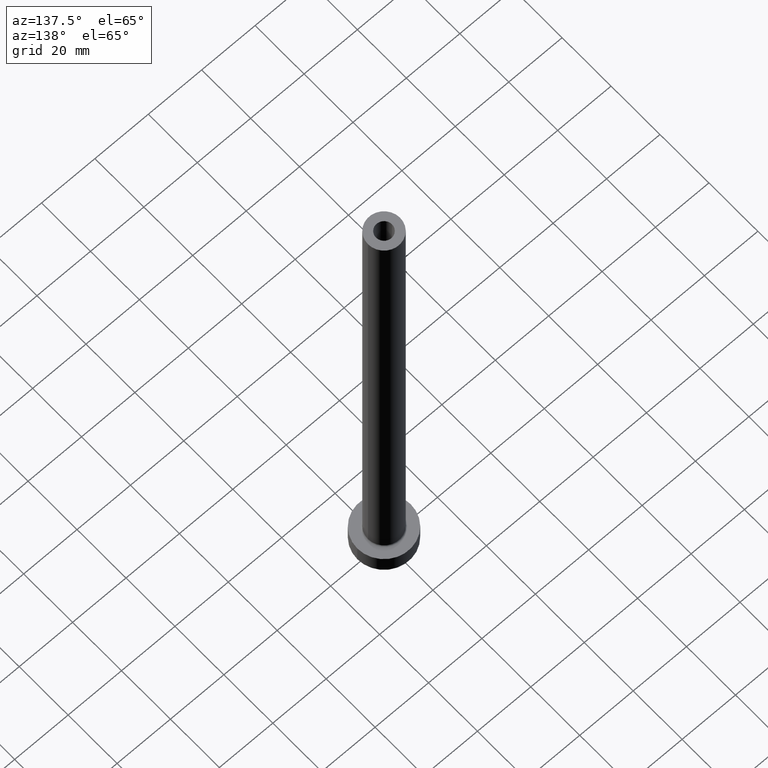
[diagram: clean part render]
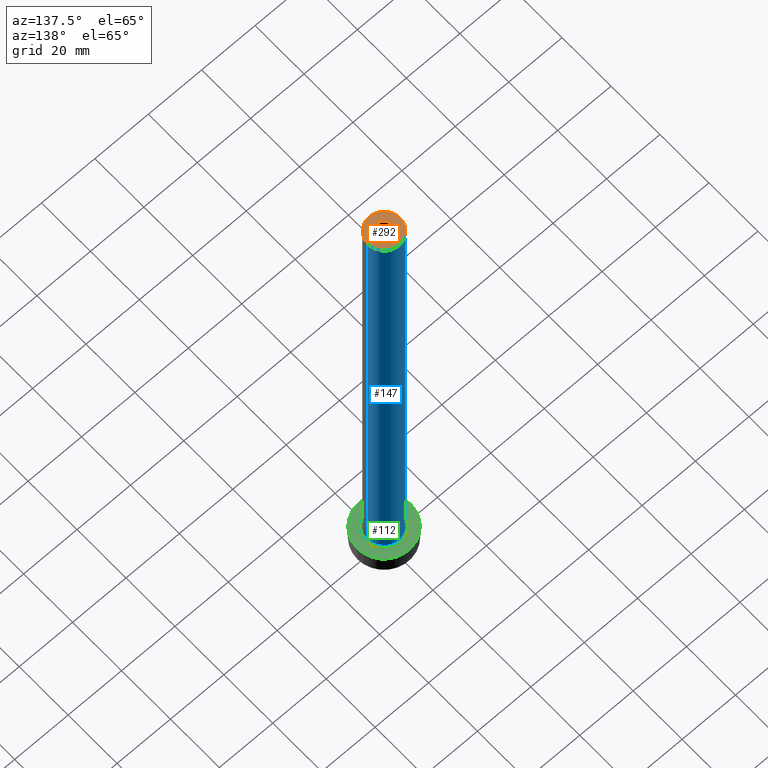
[diagram: same view with three faces highlighted in distinct colors, each labeled with its STEP entity id]
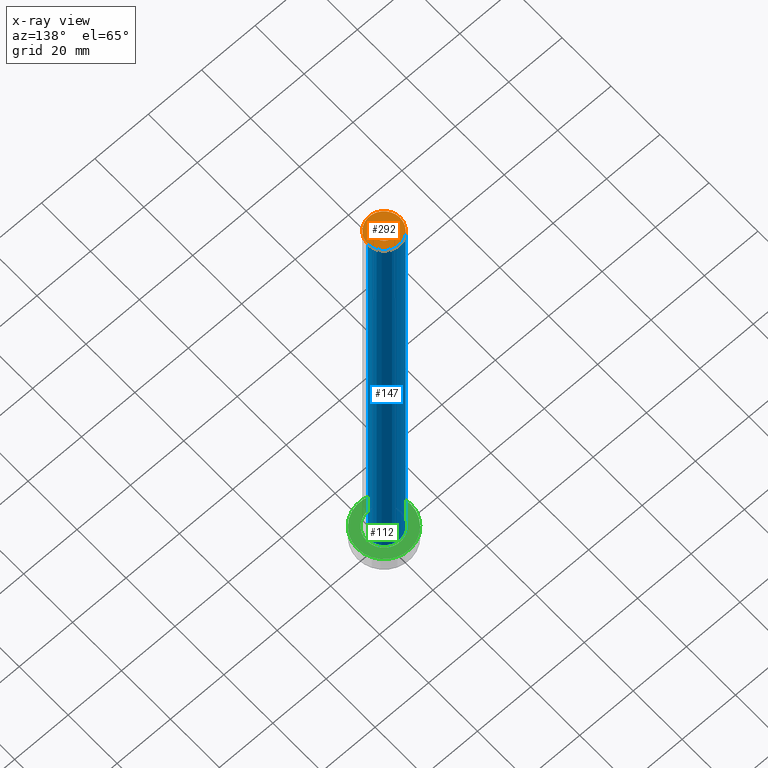
[diagram: x-ray of the same camera — body ghosted, the three highlighted faces saturated]
A machine part, auxiliary view with three faces highlighted in distinct colors.
The next image is the same camera in x-ray (body ghosted, the three faces saturated) — at least one of them is partly hidden behind the body in this view.
Their STEP definitions:

[orange] entity #292 — the highlighted planar face has unit normal (0, 0, 1).
#4 = CARTESIAN_POINT ( 'NONE',  ( 3.000000000000000444, 3.673940397442059868E-16, 200.0000000000000000 ) ) ;
#6 = AXIS2_PLACEMENT_3D ( 'NONE', #402, #233, #167 ) ;
#46 = ORIENTED_EDGE ( 'NONE', *, *, #244, .F. ) ;
#54 = PLANE ( 'NONE',  #199 ) ;
#58 = ORIENTED_EDGE ( 'NONE', *, *, #131, .T. ) ;
#80 = CARTESIAN_POINT ( 'NONE',  ( -6.000000000000000888, 0.000000000000000000, 200.0000000000000000 ) ) ;
#83 = VERTEX_POINT ( 'NONE', #449 ) ;
#85 = ORIENTED_EDGE ( 'NONE', *, *, #170, .T. ) ;
#105 = CARTESIAN_POINT ( 'NONE',  ( 6.000000000000000888, 7.347880794884120722E-16, 200.0000000000000000 ) ) ;
#127 = VERTEX_POINT ( 'NONE', #4 ) ;
#131 = EDGE_CURVE ( 'NONE', #445, #187, #272, .T. ) ;
#167 = DIRECTION ( 'NONE',  ( 1.000000000000000000, 0.000000000000000000, 0.000000000000000000 ) ) ;
#169 = AXIS2_PLACEMENT_3D ( 'NONE', #300, #398, #296 ) ;
#170 = EDGE_CURVE ( 'NONE', #187, #445, #411, .T. ) ;
#187 = VERTEX_POINT ( 'NONE', #105 ) ;
#199 = AXIS2_PLACEMENT_3D ( 'NONE', #448, #340, #447 ) ;
#209 = AXIS2_PLACEMENT_3D ( 'NONE', #379, #422, #459 ) ;
#233 = DIRECTION ( 'NONE',  ( 0.000000000000000000, 0.000000000000000000, 1.000000000000000000 ) ) ;
#244 = EDGE_CURVE ( 'NONE', #83, #127, #378, .T. ) ;
#264 = CIRCLE ( 'NONE', #6, 3.000000000000000444 ) ;
#272 = CIRCLE ( 'NONE', #331, 6.000000000000000888 ) ;
#278 = EDGE_LOOP ( 'NONE', ( #58, #85 ) ) ;
#292 = ADVANCED_FACE ( 'NONE', ( #451, #337 ), #54, .T. ) ;
#296 = DIRECTION ( 'NONE',  ( 1.000000000000000000, 0.000000000000000000, 0.000000000000000000 ) ) ;
#300 = CARTESIAN_POINT ( 'NONE',  ( 0.000000000000000000, 0.000000000000000000, 200.0000000000000000 ) ) ;
#308 = EDGE_LOOP ( 'NONE', ( #46, #454 ) ) ;
#331 = AXIS2_PLACEMENT_3D ( 'NONE', #391, #364, #333 ) ;
#333 = DIRECTION ( 'NONE',  ( 1.000000000000000000, 0.000000000000000000, 0.000000000000000000 ) ) ;
#337 = FACE_OUTER_BOUND ( 'NONE', #278, .T. ) ;
#340 = DIRECTION ( 'NONE',  ( 0.000000000000000000, 0.000000000000000000, 1.000000000000000000 ) ) ;
#345 = EDGE_CURVE ( 'NONE', #127, #83, #264, .T. ) ;
#364 = DIRECTION ( 'NONE',  ( 0.000000000000000000, 0.000000000000000000, 1.000000000000000000 ) ) ;
#378 = CIRCLE ( 'NONE', #169, 3.000000000000000444 ) ;
#379 = CARTESIAN_POINT ( 'NONE',  ( 0.000000000000000000, 0.000000000000000000, 200.0000000000000000 ) ) ;
#391 = CARTESIAN_POINT ( 'NONE',  ( 0.000000000000000000, 0.000000000000000000, 200.0000000000000000 ) ) ;
#398 = DIRECTION ( 'NONE',  ( 0.000000000000000000, 0.000000000000000000, 1.000000000000000000 ) ) ;
#402 = CARTESIAN_POINT ( 'NONE',  ( 0.000000000000000000, 0.000000000000000000, 200.0000000000000000 ) ) ;
#411 = CIRCLE ( 'NONE', #209, 6.000000000000000888 ) ;
#422 = DIRECTION ( 'NONE',  ( 0.000000000000000000, 0.000000000000000000, 1.000000000000000000 ) ) ;
#445 = VERTEX_POINT ( 'NONE', #80 ) ;
#447 = DIRECTION ( 'NONE',  ( 1.000000000000000000, 0.000000000000000000, -0.000000000000000000 ) ) ;
#448 = CARTESIAN_POINT ( 'NONE',  ( 0.000000000000000000, 0.000000000000000000, 200.0000000000000000 ) ) ;
#449 = CARTESIAN_POINT ( 'NONE',  ( -3.000000000000000444, 0.000000000000000000, 200.0000000000000000 ) ) ;
#451 = FACE_BOUND ( 'NONE', #308, .T. ) ;
#454 = ORIENTED_EDGE ( 'NONE', *, *, #345, .F. ) ;
#459 = DIRECTION ( 'NONE',  ( 1.000000000000000000, 0.000000000000000000, 0.000000000000000000 ) ) ;

[blue] entity #147 — the highlighted cylindrical surface (edge-blend (fillet) strip) has radius 6 mm, axis along (-0, -0, -1).
#38 = VERTEX_POINT ( 'NONE', #146 ) ;
#40 = CYLINDRICAL_SURFACE ( 'NONE', #432, 6.000000000000000888 ) ;
#66 = CARTESIAN_POINT ( 'NONE',  ( 6.000000000000000888, 7.347880794884120722E-16, 200.0000000000000000 ) ) ;
#80 = CARTESIAN_POINT ( 'NONE',  ( -6.000000000000000888, 0.000000000000000000, 200.0000000000000000 ) ) ;
#81 = VERTEX_POINT ( 'NONE', #257 ) ;
#88 = EDGE_CURVE ( 'NONE', #81, #38, #132, .T. ) ;
#92 = DIRECTION ( 'NONE',  ( 1.000000000000000000, 0.000000000000000000, 0.000000000000000000 ) ) ;
#105 = CARTESIAN_POINT ( 'NONE',  ( 6.000000000000000888, 7.347880794884120722E-16, 200.0000000000000000 ) ) ;
#116 = CARTESIAN_POINT ( 'NONE',  ( -6.000000000000000888, 0.000000000000000000, 200.0000000000000000 ) ) ;
#130 = DIRECTION ( 'NONE',  ( 0.000000000000000000, 0.000000000000000000, 1.000000000000000000 ) ) ;
#132 = CIRCLE ( 'NONE', #179, 6.000000000000000888 ) ;
#146 = CARTESIAN_POINT ( 'NONE',  ( -6.000000000000000888, 0.000000000000000000, 7.500000000000007105 ) ) ;
#147 = ADVANCED_FACE ( 'NONE', ( #355 ), #40, .T. ) ;
#151 = ORIENTED_EDGE ( 'NONE', *, *, #88, .T. ) ;
#158 = EDGE_LOOP ( 'NONE', ( #274, #225, #151, #281 ) ) ;
#170 = EDGE_CURVE ( 'NONE', #187, #445, #411, .T. ) ;
#177 = CARTESIAN_POINT ( 'NONE',  ( 0.000000000000000000, 0.000000000000000000, 200.0000000000000000 ) ) ;
#179 = AXIS2_PLACEMENT_3D ( 'NONE', #413, #130, #92 ) ;
#186 = EDGE_CURVE ( 'NONE', #445, #38, #383, .T. ) ;
#187 = VERTEX_POINT ( 'NONE', #105 ) ;
#209 = AXIS2_PLACEMENT_3D ( 'NONE', #379, #422, #459 ) ;
#225 = ORIENTED_EDGE ( 'NONE', *, *, #401, .T. ) ;
#257 = CARTESIAN_POINT ( 'NONE',  ( 6.000000000000000888, 7.347880794884120722E-16, 7.500000000000007105 ) ) ;
#274 = ORIENTED_EDGE ( 'NONE', *, *, #170, .F. ) ;
#281 = ORIENTED_EDGE ( 'NONE', *, *, #186, .F. ) ;
#282 = VECTOR ( 'NONE', #368, 1000.000000000000000 ) ;
#317 = DIRECTION ( 'NONE',  ( -1.000000000000000000, 0.000000000000000000, 0.000000000000000000 ) ) ;
#350 = DIRECTION ( 'NONE',  ( -0.000000000000000000, -0.000000000000000000, -1.000000000000000000 ) ) ;
#355 = FACE_OUTER_BOUND ( 'NONE', #158, .T. ) ;
#368 = DIRECTION ( 'NONE',  ( -0.000000000000000000, -0.000000000000000000, -1.000000000000000000 ) ) ;
#379 = CARTESIAN_POINT ( 'NONE',  ( 0.000000000000000000, 0.000000000000000000, 200.0000000000000000 ) ) ;
#383 = LINE ( 'NONE', #116, #282 ) ;
#401 = EDGE_CURVE ( 'NONE', #187, #81, #429, .T. ) ;
#411 = CIRCLE ( 'NONE', #209, 6.000000000000000888 ) ;
#413 = CARTESIAN_POINT ( 'NONE',  ( 0.000000000000000000, 0.000000000000000000, 7.500000000000007105 ) ) ;
#419 = VECTOR ( 'NONE', #457, 1000.000000000000000 ) ;
#422 = DIRECTION ( 'NONE',  ( 0.000000000000000000, 0.000000000000000000, 1.000000000000000000 ) ) ;
#429 = LINE ( 'NONE', #66, #419 ) ;
#432 = AXIS2_PLACEMENT_3D ( 'NONE', #177, #350, #317 ) ;
#445 = VERTEX_POINT ( 'NONE', #80 ) ;
#457 = DIRECTION ( 'NONE',  ( -0.000000000000000000, -0.000000000000000000, -1.000000000000000000 ) ) ;
#459 = DIRECTION ( 'NONE',  ( 1.000000000000000000, 0.000000000000000000, 0.000000000000000000 ) ) ;

[green] entity #112 — the highlighted planar face has unit normal (0, 0, 1).
#12 = AXIS2_PLACEMENT_3D ( 'NONE', #168, #141, #275 ) ;
#17 = CARTESIAN_POINT ( 'NONE',  ( -10.00000000000000000, 0.000000000000000000, 7.000000000000000000 ) ) ;
#18 = PLANE ( 'NONE',  #160 ) ;
#39 = CARTESIAN_POINT ( 'NONE',  ( 0.000000000000000000, 0.000000000000000000, 7.000000000000000000 ) ) ;
#42 = CIRCLE ( 'NONE', #12, 6.500000000000000888 ) ;
#45 = DIRECTION ( 'NONE',  ( 1.000000000000000000, 0.000000000000000000, -0.000000000000000000 ) ) ;
#47 = ORIENTED_EDGE ( 'NONE', *, *, #405, .T. ) ;
#65 = CIRCLE ( 'NONE', #440, 6.500000000000000888 ) ;
#79 = AXIS2_PLACEMENT_3D ( 'NONE', #268, #263, #99 ) ;
#91 = VERTEX_POINT ( 'NONE', #17 ) ;
#97 = VERTEX_POINT ( 'NONE', #441 ) ;
#99 = DIRECTION ( 'NONE',  ( 1.000000000000000000, 0.000000000000000000, 0.000000000000000000 ) ) ;
#101 = CIRCLE ( 'NONE', #273, 10.00000000000000000 ) ;
#104 = ORIENTED_EDGE ( 'NONE', *, *, #195, .T. ) ;
#106 = DIRECTION ( 'NONE',  ( 0.000000000000000000, 0.000000000000000000, 1.000000000000000000 ) ) ;
#111 = EDGE_LOOP ( 'NONE', ( #299, #47 ) ) ;
#112 = ADVANCED_FACE ( 'NONE', ( #200, #290 ), #18, .T. ) ;
#118 = CARTESIAN_POINT ( 'NONE',  ( 0.000000000000000000, 0.000000000000000000, 7.000000000000000000 ) ) ;
#135 = ORIENTED_EDGE ( 'NONE', *, *, #343, .T. ) ;
#140 = CARTESIAN_POINT ( 'NONE',  ( 6.500000000000000888, 0.000000000000000000, 7.000000000000002665 ) ) ;
#141 = DIRECTION ( 'NONE',  ( -0.000000000000000000, -0.000000000000000000, -1.000000000000000000 ) ) ;
#142 = CARTESIAN_POINT ( 'NONE',  ( -6.500000000000000888, 7.960204194457796463E-16, 7.000000000000002665 ) ) ;
#160 = AXIS2_PLACEMENT_3D ( 'NONE', #39, #215, #45 ) ;
#168 = CARTESIAN_POINT ( 'NONE',  ( 0.000000000000000000, 0.000000000000000000, 7.000000000000000000 ) ) ;
#194 = VERTEX_POINT ( 'NONE', #140 ) ;
#195 = EDGE_CURVE ( 'NONE', #194, #371, #65, .T. ) ;
#200 = FACE_BOUND ( 'NONE', #406, .T. ) ;
#215 = DIRECTION ( 'NONE',  ( 0.000000000000000000, 0.000000000000000000, 1.000000000000000000 ) ) ;
#263 = DIRECTION ( 'NONE',  ( 0.000000000000000000, 0.000000000000000000, 1.000000000000000000 ) ) ;
#268 = CARTESIAN_POINT ( 'NONE',  ( 0.000000000000000000, 0.000000000000000000, 7.000000000000000000 ) ) ;
#273 = AXIS2_PLACEMENT_3D ( 'NONE', #118, #106, #385 ) ;
#275 = DIRECTION ( 'NONE',  ( 1.000000000000000000, 0.000000000000000000, 0.000000000000000000 ) ) ;
#290 = FACE_OUTER_BOUND ( 'NONE', #111, .T. ) ;
#299 = ORIENTED_EDGE ( 'NONE', *, *, #324, .T. ) ;
#307 = DIRECTION ( 'NONE',  ( -0.000000000000000000, -0.000000000000000000, -1.000000000000000000 ) ) ;
#324 = EDGE_CURVE ( 'NONE', #91, #97, #359, .T. ) ;
#343 = EDGE_CURVE ( 'NONE', #371, #194, #42, .T. ) ;
#346 = CARTESIAN_POINT ( 'NONE',  ( 0.000000000000000000, 0.000000000000000000, 7.000000000000000000 ) ) ;
#359 = CIRCLE ( 'NONE', #79, 10.00000000000000000 ) ;
#371 = VERTEX_POINT ( 'NONE', #142 ) ;
#372 = DIRECTION ( 'NONE',  ( 1.000000000000000000, 0.000000000000000000, 0.000000000000000000 ) ) ;
#385 = DIRECTION ( 'NONE',  ( 1.000000000000000000, 0.000000000000000000, 0.000000000000000000 ) ) ;
#405 = EDGE_CURVE ( 'NONE', #97, #91, #101, .T. ) ;
#406 = EDGE_LOOP ( 'NONE', ( #104, #135 ) ) ;
#440 = AXIS2_PLACEMENT_3D ( 'NONE', #346, #307, #372 ) ;
#441 = CARTESIAN_POINT ( 'NONE',  ( 10.00000000000000000, 1.224646799147353256E-15, 7.000000000000000000 ) ) ;